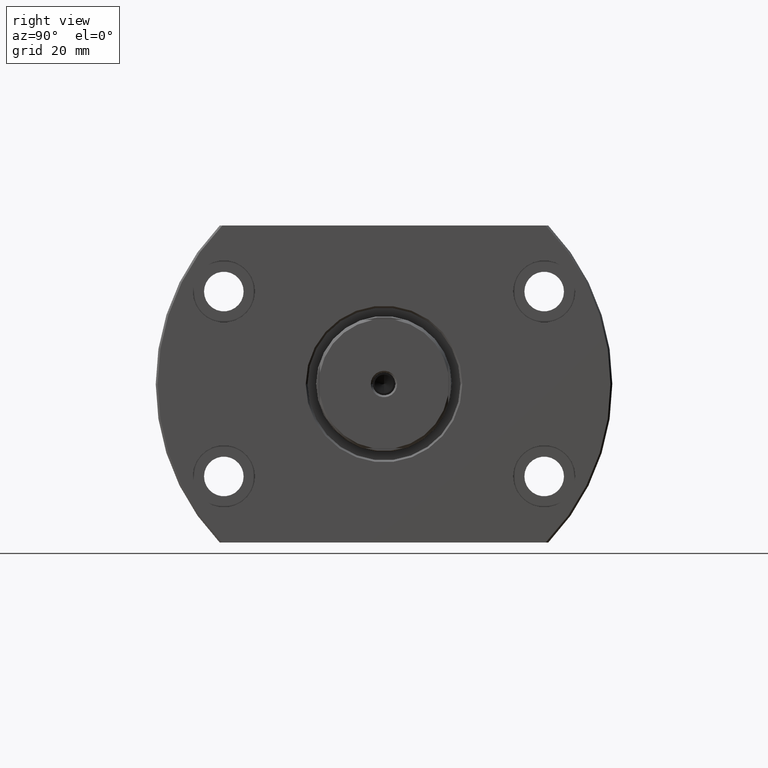
[diagram: clean part render]
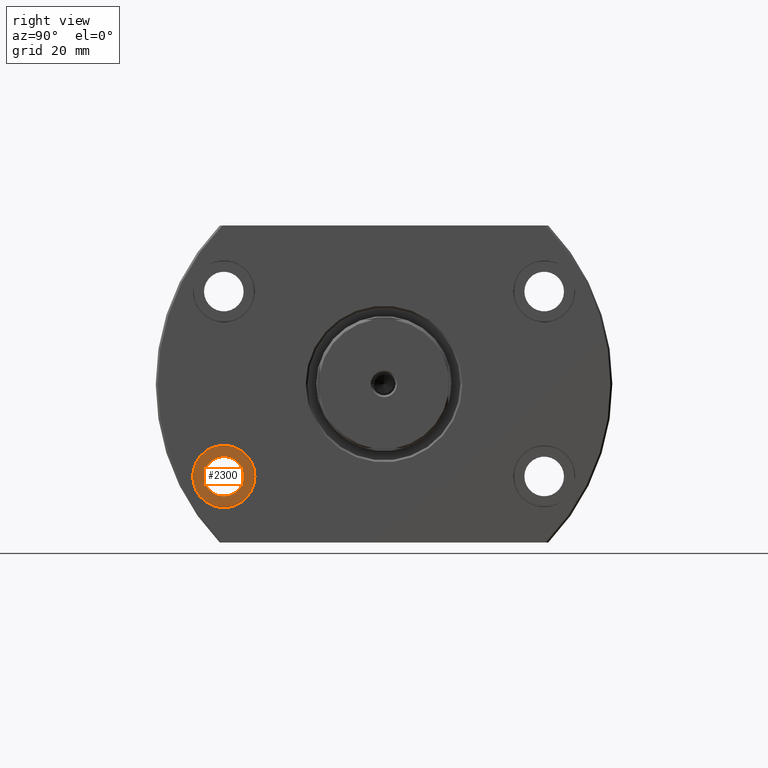
[diagram: same view with one face highlighted and labeled with its STEP entity id]
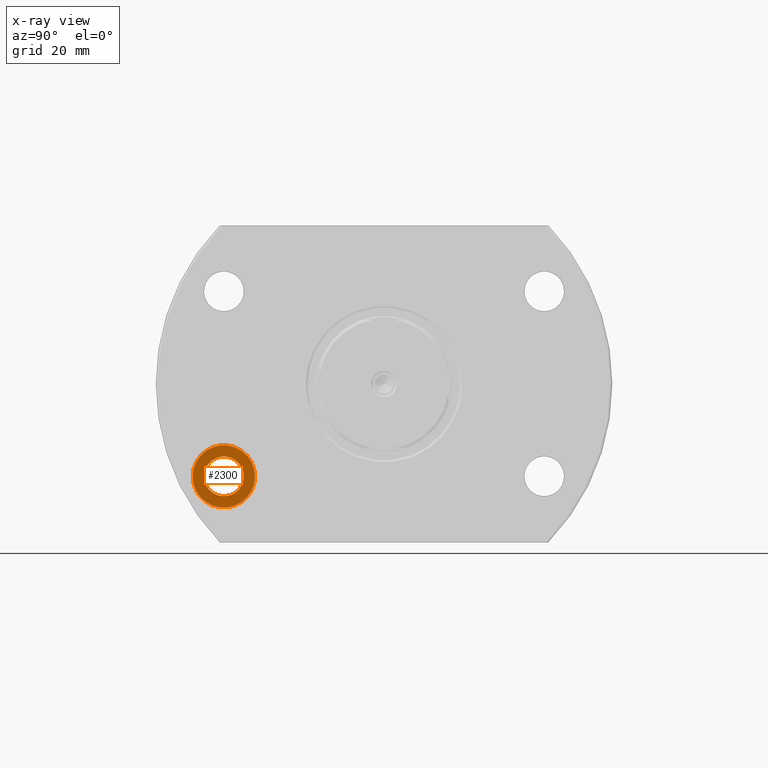
[diagram: x-ray of the same camera — body ghosted, the highlighted face saturated]
A machine part, right view. The second image highlights one B-rep face of the part: STEP entity #2300.
The next image is the same camera in x-ray: the body ghosted, the highlighted face saturated — about 0% of this face is hidden behind the body in this view.
In plain terms, the highlighted planar face has unit normal (1, -0, -0).
Its self-contained STEP definition (entity closure, byte-faithful):
#45 = CARTESIAN_POINT ( 'NONE',  ( 29.69999999999877005, -42.45000000000086970, -24.49999999999999645 ) ) ;
#146 = ORIENTED_EDGE ( 'NONE', *, *, #782, .T. ) ;
#203 = CARTESIAN_POINT ( 'NONE',  ( 29.69999999999877005, -42.45000000000086970, -24.49999999999999645 ) ) ;
#246 = DIRECTION ( 'NONE',  ( 1.000000000000000000, -2.889302749805715994E-14, -3.155443620884047222E-30 ) ) ;
#268 = CIRCLE ( 'NONE', #2924, 8.250000000000007105 ) ;
#439 = CIRCLE ( 'NONE', #1366, 5.249999999999997335 ) ;
#516 = EDGE_CURVE ( 'NONE', #1392, #2428, #268, .T. ) ;
#681 = ORIENTED_EDGE ( 'NONE', *, *, #2039, .F. ) ;
#740 = EDGE_LOOP ( 'NONE', ( #2491, #146 ) ) ;
#776 = CARTESIAN_POINT ( 'NONE',  ( 29.69999999999852847, -50.70000000000087681, -24.49999999999999645 ) ) ;
#782 = EDGE_CURVE ( 'NONE', #2428, #1392, #1840, .T. ) ;
#1006 = CIRCLE ( 'NONE', #1744, 5.249999999999997335 ) ;
#1104 = DIRECTION ( 'NONE',  ( 1.000000000000000000, -2.889302749805715994E-14, -3.155443620884047222E-30 ) ) ;
#1163 = VERTEX_POINT ( 'NONE', #1594 ) ;
#1199 = DIRECTION ( 'NONE',  ( 1.000000000000000000, -2.889302749805715994E-14, -3.155443620884047222E-30 ) ) ;
#1230 = CARTESIAN_POINT ( 'NONE',  ( 29.69999999999877005, -42.45000000000086970, -24.49999999999999645 ) ) ;
#1237 = PLANE ( 'NONE',  #2976 ) ;
#1301 = DIRECTION ( 'NONE',  ( 2.907726969256363870E-14, 1.000000000000000000, 0.000000000000000000 ) ) ;
#1355 = EDGE_CURVE ( 'NONE', #2438, #1163, #439, .T. ) ;
#1366 = AXIS2_PLACEMENT_3D ( 'NONE', #203, #1199, #2669 ) ;
#1392 = VERTEX_POINT ( 'NONE', #1935 ) ;
#1510 = DIRECTION ( 'NONE',  ( 1.000000000000000000, -2.889302749805715994E-14, -3.155443620884047222E-30 ) ) ;
#1594 = CARTESIAN_POINT ( 'NONE',  ( 29.69999999999892282, -37.20000000000086970, -24.49999999999999645 ) ) ;
#1744 = AXIS2_PLACEMENT_3D ( 'NONE', #45, #1510, #1301 ) ;
#1840 = CIRCLE ( 'NONE', #2099, 8.250000000000007105 ) ;
#1861 = DIRECTION ( 'NONE',  ( 2.901719268906656730E-14, 1.000000000000000000, 0.000000000000000000 ) ) ;
#1935 = CARTESIAN_POINT ( 'NONE',  ( 29.69999999999900808, -34.20000000000086260, -24.49999999999999645 ) ) ;
#2039 = EDGE_CURVE ( 'NONE', #1163, #2438, #1006, .T. ) ;
#2099 = AXIS2_PLACEMENT_3D ( 'NONE', #2578, #1104, #1861 ) ;
#2185 = FACE_OUTER_BOUND ( 'NONE', #740, .T. ) ;
#2300 = ADVANCED_FACE ( 'NONE', ( #3187, #2185 ), #1237, .T. ) ;
#2423 = ORIENTED_EDGE ( 'NONE', *, *, #1355, .F. ) ;
#2428 = VERTEX_POINT ( 'NONE', #776 ) ;
#2438 = VERTEX_POINT ( 'NONE', #2993 ) ;
#2445 = DIRECTION ( 'NONE',  ( 2.889302749805715994E-14, 1.000000000000000000, 0.000000000000000000 ) ) ;
#2491 = ORIENTED_EDGE ( 'NONE', *, *, #516, .T. ) ;
#2578 = CARTESIAN_POINT ( 'NONE',  ( 29.69999999999877005, -42.45000000000086970, -24.49999999999999645 ) ) ;
#2669 = DIRECTION ( 'NONE',  ( 2.907726969256363870E-14, 1.000000000000000000, 0.000000000000000000 ) ) ;
#2692 = DIRECTION ( 'NONE',  ( 1.000000000000000000, -2.889302749805715994E-14, -3.155443620884047222E-30 ) ) ;
#2924 = AXIS2_PLACEMENT_3D ( 'NONE', #1230, #246, #3208 ) ;
#2948 = EDGE_LOOP ( 'NONE', ( #681, #2423 ) ) ;
#2976 = AXIS2_PLACEMENT_3D ( 'NONE', #3158, #2692, #2445 ) ;
#2993 = CARTESIAN_POINT ( 'NONE',  ( 29.69999999999861728, -47.70000000000086970, -24.49999999999999645 ) ) ;
#3158 = CARTESIAN_POINT ( 'NONE',  ( 29.69999999999999574, -8.584207636969308790E-13, -1.268488335595387073E-28 ) ) ;
#3187 = FACE_BOUND ( 'NONE', #2948, .T. ) ;
#3208 = DIRECTION ( 'NONE',  ( 2.901719268906656730E-14, 1.000000000000000000, 0.000000000000000000 ) ) ;